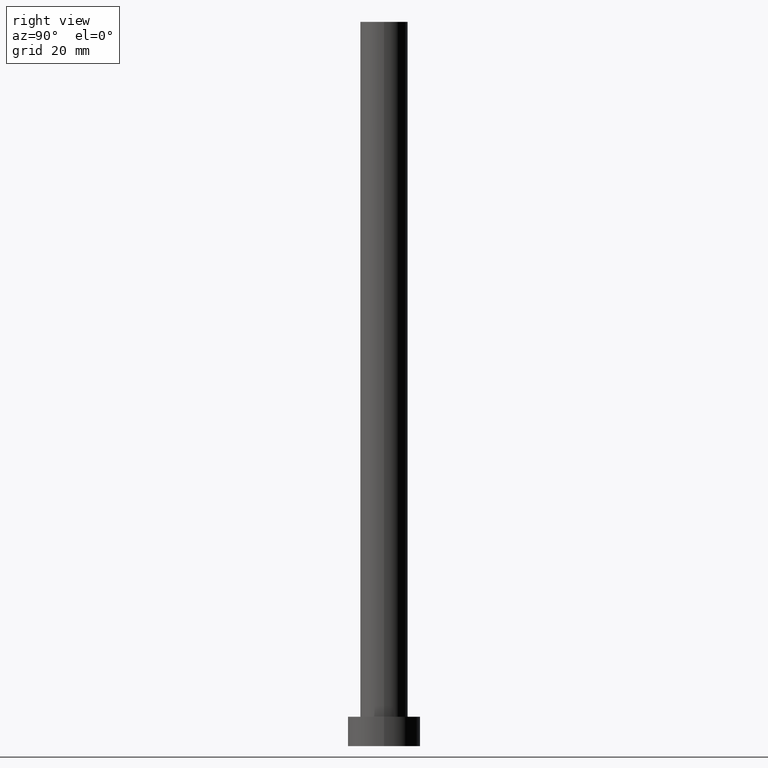
[diagram: clean part render]
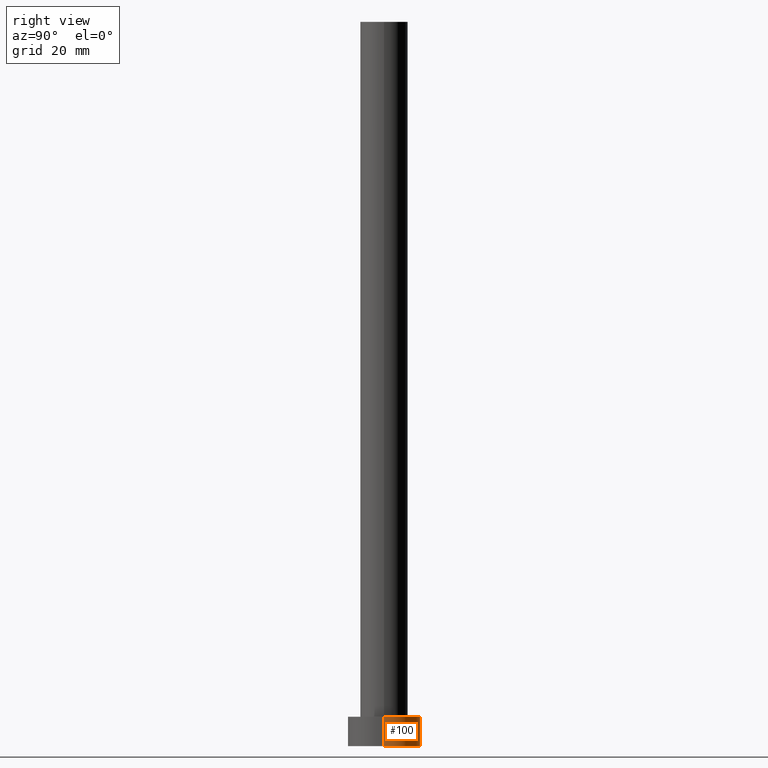
[diagram: same view with one face highlighted and labeled with its STEP entity id]
A machine part, right view. The second image highlights one B-rep face of the part: STEP entity #100.
In plain terms, the highlighted cylindrical surface (edge-blend (fillet) strip) has radius 8 mm, axis along (-0, -0, -1).
Its self-contained STEP definition (entity closure, byte-faithful):
#5 = DIRECTION ( 'NONE',  ( -0.000000000000000000, -0.000000000000000000, -1.000000000000000000 ) ) ;
#11 = CARTESIAN_POINT ( 'NONE',  ( -8.000000000000000000, 0.000000000000000000, 0.000000000000000000 ) ) ;
#21 = DIRECTION ( 'NONE',  ( 0.000000000000000000, 0.000000000000000000, 1.000000000000000000 ) ) ;
#23 = CARTESIAN_POINT ( 'NONE',  ( 8.000000000000000000, 9.797174393178823685E-16, 6.500000000000000000 ) ) ;
#40 = CARTESIAN_POINT ( 'NONE',  ( 0.000000000000000000, 0.000000000000000000, 6.500000000000000000 ) ) ;
#48 = EDGE_CURVE ( 'NONE', #242, #172, #197, .T. ) ;
#55 = CARTESIAN_POINT ( 'NONE',  ( -8.000000000000000000, 0.000000000000000000, 6.500000000000000000 ) ) ;
#57 = ORIENTED_EDGE ( 'NONE', *, *, #48, .F. ) ;
#58 = FACE_OUTER_BOUND ( 'NONE', #74, .T. ) ;
#61 = CARTESIAN_POINT ( 'NONE',  ( 0.000000000000000000, 0.000000000000000000, 0.000000000000000000 ) ) ;
#63 = CARTESIAN_POINT ( 'NONE',  ( 8.000000000000000000, 9.797174393178823685E-16, 6.500000000000000000 ) ) ;
#65 = EDGE_CURVE ( 'NONE', #252, #172, #247, .T. ) ;
#67 = ORIENTED_EDGE ( 'NONE', *, *, #187, .T. ) ;
#71 = LINE ( 'NONE', #63, #177 ) ;
#74 = EDGE_LOOP ( 'NONE', ( #146, #67, #118, #57 ) ) ;
#75 = VECTOR ( 'NONE', #5, 1000.000000000000000 ) ;
#90 = DIRECTION ( 'NONE',  ( -0.000000000000000000, -0.000000000000000000, -1.000000000000000000 ) ) ;
#100 = ADVANCED_FACE ( 'NONE', ( #58 ), #239, .T. ) ;
#102 = CIRCLE ( 'NONE', #245, 8.000000000000000000 ) ;
#110 = EDGE_CURVE ( 'NONE', #116, #242, #102, .T. ) ;
#116 = VERTEX_POINT ( 'NONE', #23 ) ;
#118 = ORIENTED_EDGE ( 'NONE', *, *, #65, .T. ) ;
#138 = DIRECTION ( 'NONE',  ( -0.000000000000000000, -0.000000000000000000, -1.000000000000000000 ) ) ;
#141 = DIRECTION ( 'NONE',  ( -1.000000000000000000, 0.000000000000000000, 0.000000000000000000 ) ) ;
#146 = ORIENTED_EDGE ( 'NONE', *, *, #110, .F. ) ;
#152 = CARTESIAN_POINT ( 'NONE',  ( 0.000000000000000000, 0.000000000000000000, 6.500000000000000000 ) ) ;
#154 = DIRECTION ( 'NONE',  ( 0.000000000000000000, 0.000000000000000000, 1.000000000000000000 ) ) ;
#172 = VERTEX_POINT ( 'NONE', #11 ) ;
#177 = VECTOR ( 'NONE', #90, 1000.000000000000000 ) ;
#181 = CARTESIAN_POINT ( 'NONE',  ( -8.000000000000000000, 0.000000000000000000, 6.500000000000000000 ) ) ;
#187 = EDGE_CURVE ( 'NONE', #116, #252, #71, .T. ) ;
#195 = CARTESIAN_POINT ( 'NONE',  ( 8.000000000000000000, 9.797174393178823685E-16, 0.000000000000000000 ) ) ;
#197 = LINE ( 'NONE', #181, #75 ) ;
#210 = AXIS2_PLACEMENT_3D ( 'NONE', #152, #138, #141 ) ;
#217 = DIRECTION ( 'NONE',  ( 1.000000000000000000, 0.000000000000000000, 0.000000000000000000 ) ) ;
#229 = AXIS2_PLACEMENT_3D ( 'NONE', #61, #21, #253 ) ;
#239 = CYLINDRICAL_SURFACE ( 'NONE', #210, 8.000000000000000000 ) ;
#242 = VERTEX_POINT ( 'NONE', #55 ) ;
#245 = AXIS2_PLACEMENT_3D ( 'NONE', #40, #154, #217 ) ;
#247 = CIRCLE ( 'NONE', #229, 8.000000000000000000 ) ;
#252 = VERTEX_POINT ( 'NONE', #195 ) ;
#253 = DIRECTION ( 'NONE',  ( 1.000000000000000000, 0.000000000000000000, 0.000000000000000000 ) ) ;